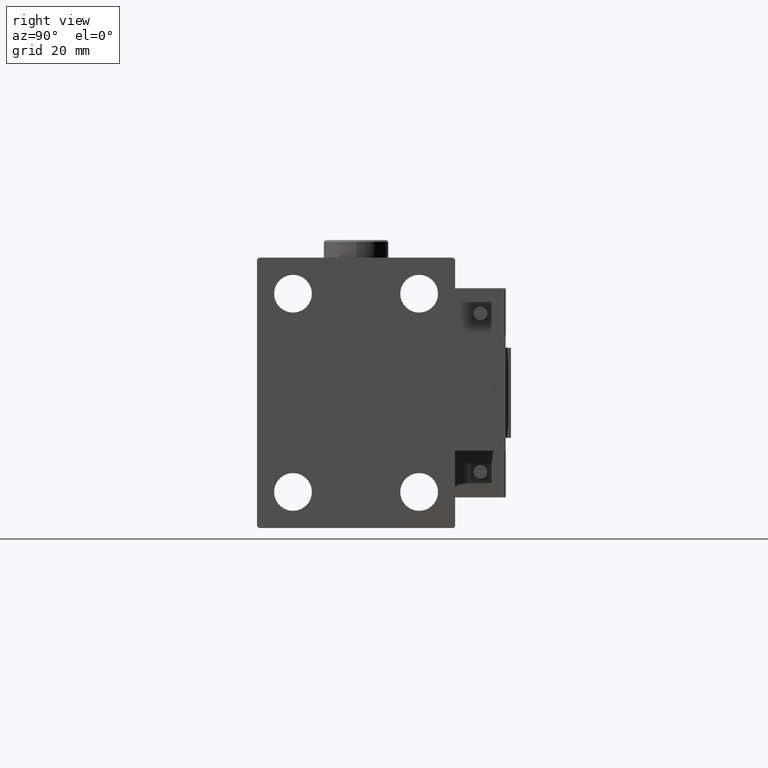
[diagram: clean part render]
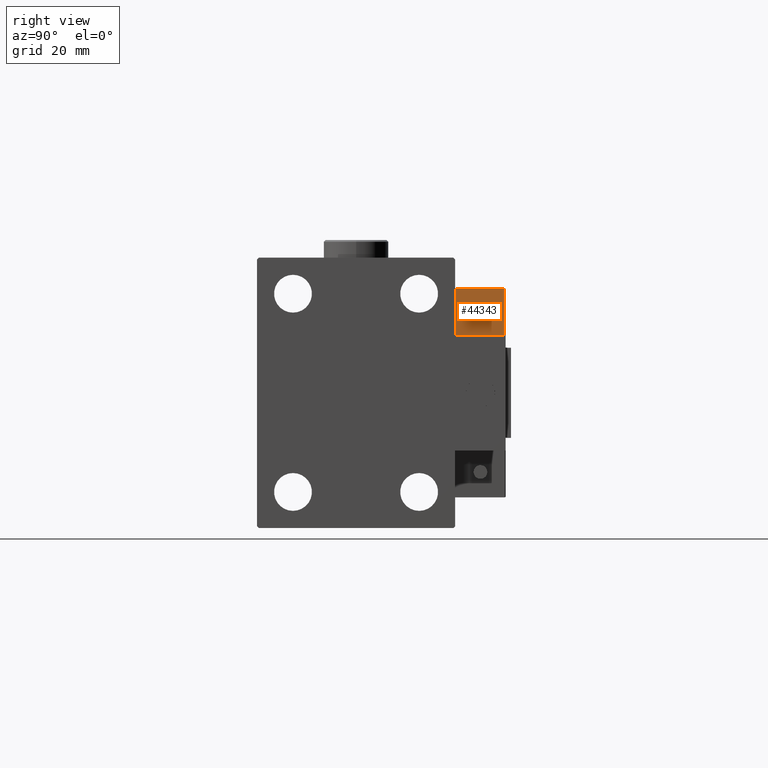
[diagram: same view with one face highlighted and labeled with its STEP entity id]
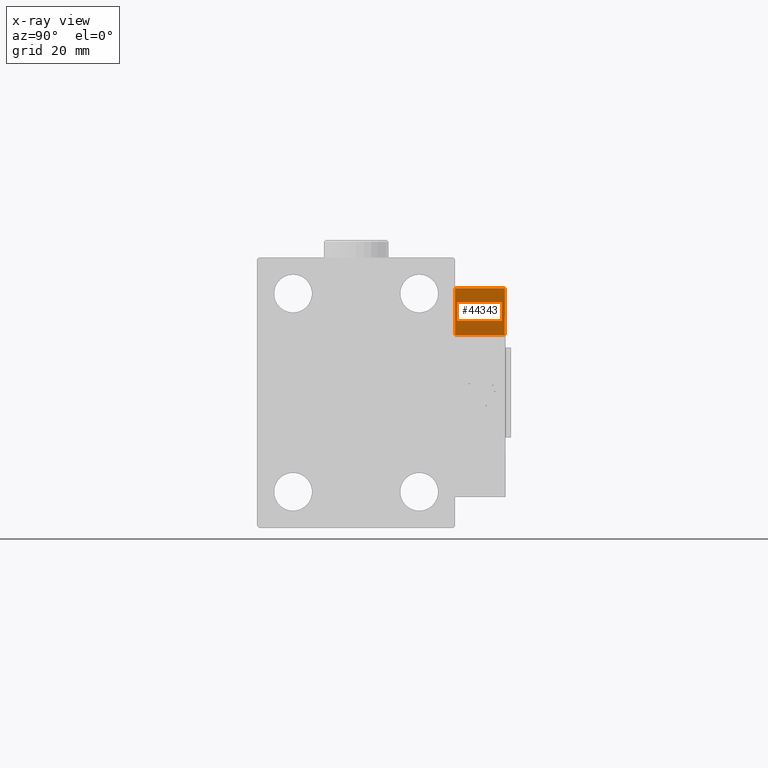
[diagram: x-ray of the same camera — body ghosted, the highlighted face saturated]
A machine part, right view. The second image highlights one B-rep face of the part: STEP entity #44343.
The next image is the same camera in x-ray: the body ghosted, the highlighted face saturated — about 6% of this face is hidden behind the body in this view.
In plain terms, the highlighted planar face has unit normal (-1, 0, 0).
Its self-contained STEP definition (entity closure, byte-faithful):
#1673 = VERTEX_POINT ( 'NONE', #3716 ) ;
#3716 = CARTESIAN_POINT ( 'NONE',  ( -26.99999999999994671, 7.000000000000005329, 0.000000000000000000 ) ) ;
#4726 = FACE_OUTER_BOUND ( 'NONE', #31015, .T. ) ;
#5120 = CARTESIAN_POINT ( 'NONE',  ( -26.99999999999994671, 7.000000000000005329, 14.00000000000000000 ) ) ;
#5869 = CARTESIAN_POINT ( 'NONE',  ( -26.99999999999993605, 20.00000000000002132, 14.00000000000000000 ) ) ;
#6349 = LINE ( 'NONE', #38166, #14485 ) ;
#6721 = CARTESIAN_POINT ( 'NONE',  ( -26.99999999999993605, 20.00000000000002132, 0.000000000000000000 ) ) ;
#9103 = ORIENTED_EDGE ( 'NONE', *, *, #28618, .T. ) ;
#9636 = EDGE_CURVE ( 'NONE', #39707, #1673, #45992, .T. ) ;
#9893 = CARTESIAN_POINT ( 'NONE',  ( -26.99999999999993605, 20.00000000000002132, 13.70000000000000107 ) ) ;
#12706 = LINE ( 'NONE', #5869, #24162 ) ;
#13126 = EDGE_CURVE ( 'NONE', #39707, #31452, #41937, .T. ) ;
#14485 = VECTOR ( 'NONE', #46220, 1000.000000000000000 ) ;
#14625 = VERTEX_POINT ( 'NONE', #6721 ) ;
#16620 = DIRECTION ( 'NONE',  ( -0.000000000000000000, -0.000000000000000000, -1.000000000000000000 ) ) ;
#18081 = CARTESIAN_POINT ( 'NONE',  ( -26.99999999999994671, 7.000000000000005329, 13.70000000000000107 ) ) ;
#20877 = CARTESIAN_POINT ( 'NONE',  ( -26.99999999999993605, 20.00000000000002132, 14.00000000000000000 ) ) ;
#21190 = AXIS2_PLACEMENT_3D ( 'NONE', #20877, #44852, #25053 ) ;
#24162 = VECTOR ( 'NONE', #16620, 1000.000000000000000 ) ;
#24600 = ORIENTED_EDGE ( 'NONE', *, *, #9636, .F. ) ;
#25053 = DIRECTION ( 'NONE',  ( 8.006416042969869188E-16, 1.000000000000000000, 0.000000000000000000 ) ) ;
#25443 = ORIENTED_EDGE ( 'NONE', *, *, #43064, .T. ) ;
#28618 = EDGE_CURVE ( 'NONE', #31452, #14625, #12706, .T. ) ;
#30480 = DIRECTION ( 'NONE',  ( 8.006416042969869188E-16, 1.000000000000000000, -0.000000000000000000 ) ) ;
#31015 = EDGE_LOOP ( 'NONE', ( #24600, #43033, #9103, #25443 ) ) ;
#31452 = VERTEX_POINT ( 'NONE', #36505 ) ;
#36505 = CARTESIAN_POINT ( 'NONE',  ( -26.99999999999993605, 20.00000000000002132, 13.70000000000000107 ) ) ;
#36533 = PLANE ( 'NONE',  #21190 ) ;
#37871 = VECTOR ( 'NONE', #30480, 1000.000000000000000 ) ;
#38166 = CARTESIAN_POINT ( 'NONE',  ( -26.99999999999993605, 20.00000000000002132, 0.000000000000000000 ) ) ;
#39707 = VERTEX_POINT ( 'NONE', #18081 ) ;
#41937 = LINE ( 'NONE', #9893, #37871 ) ;
#43033 = ORIENTED_EDGE ( 'NONE', *, *, #13126, .T. ) ;
#43064 = EDGE_CURVE ( 'NONE', #14625, #1673, #6349, .T. ) ;
#44343 = ADVANCED_FACE ( 'NONE', ( #4726 ), #36533, .F. ) ;
#44852 = DIRECTION ( 'NONE',  ( 1.000000000000000000, -8.006416042969869188E-16, 0.000000000000000000 ) ) ;
#45992 = LINE ( 'NONE', #5120, #46898 ) ;
#46220 = DIRECTION ( 'NONE',  ( -8.006416042969869188E-16, -1.000000000000000000, 0.000000000000000000 ) ) ;
#46898 = VECTOR ( 'NONE', #49652, 1000.000000000000000 ) ;
#49652 = DIRECTION ( 'NONE',  ( -0.000000000000000000, -0.000000000000000000, -1.000000000000000000 ) ) ;